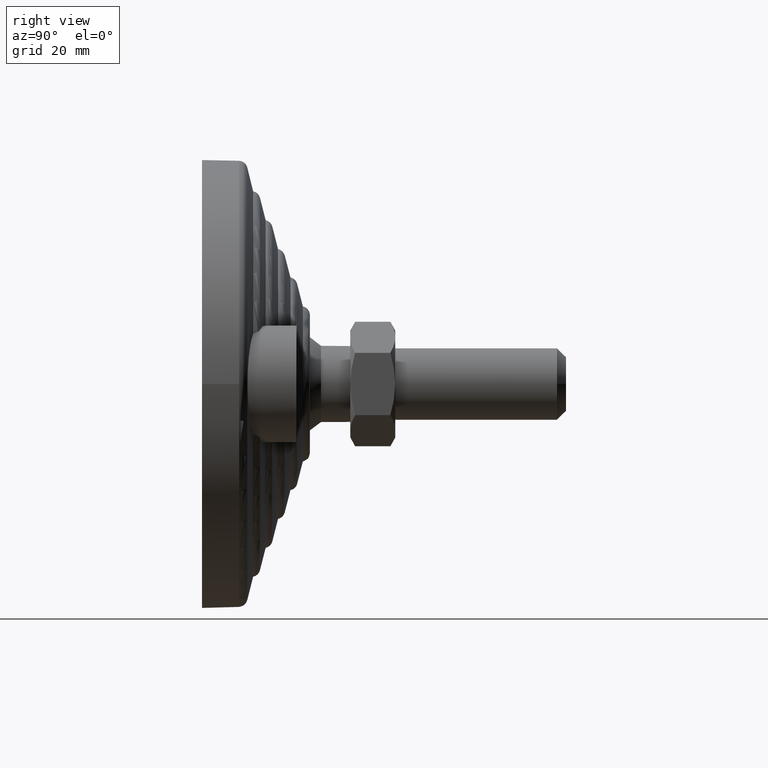
[diagram: clean part render]
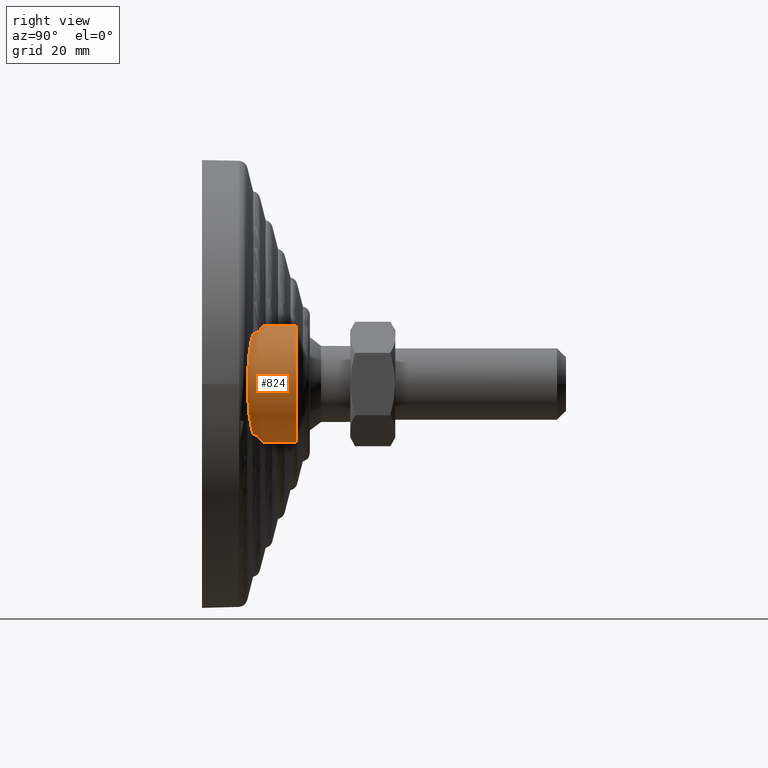
[diagram: same view with one face highlighted and labeled with its STEP entity id]
A machine part, right view. The second image highlights one B-rep face of the part: STEP entity #824.
In plain terms, the highlighted cylindrical surface (partial cylindrical patch) has radius 13 mm, axis along (0, -1, 0).
Its self-contained STEP definition (entity closure, byte-faithful):
#85=CYLINDRICAL_SURFACE('',#977,13.);
#88=B_SPLINE_CURVE_WITH_KNOTS('',3,(#1264,#1265,#1266,#1267,#1268,#1269,
#1270,#1271,#1272,#1273,#1274,#1275),.UNSPECIFIED.,.F.,.F.,(4,2,2,2,2,4),
(2.50076852648819,2.81060137692785,3.1204342273675,3.43026707780716,3.74009992824682,
3.82645813405755),.UNSPECIFIED.);
#91=B_SPLINE_CURVE_WITH_KNOTS('',3,(#1306,#1307,#1308,#1309,#1310,#1311,
#1312,#1313,#1314,#1315,#1316,#1317),.UNSPECIFIED.,.F.,.F.,(4,2,2,2,2,4),
(1.17507891891882,1.26143712472955,1.57126997516921,1.88110282560887,2.19093567604853,
2.50076852648819),.UNSPECIFIED.);
#104=B_SPLINE_CURVE_WITH_KNOTS('',3,(#1492,#1493,#1494,#1495,#1496,#1497,
#1498,#1499,#1500,#1501),.UNSPECIFIED.,.F.,.F.,(4,2,2,2,4),(-0.29478488646024,
-0.202968542157445,-0.118333422237156,-0.0551045092159439,-0.0424427112928952),
 .UNSPECIFIED.);
#106=B_SPLINE_CURVE_WITH_KNOTS('',3,(#1514,#1515,#1516,#1517,#1518,#1519,
#1520,#1521,#1522,#1523),.UNSPECIFIED.,.F.,.F.,(4,2,2,2,4),(-1.28290585889536,
-1.27614486245681,-1.22425418163122,-1.13521235336469,-1.03713357529167),
 .UNSPECIFIED.);
#110=B_SPLINE_CURVE_WITH_KNOTS('',3,(#1636,#1637,#1638,#1639,#1640,#1641,
#1642,#1643),.UNSPECIFIED.,.F.,.F.,(4,2,2,4),(0.496035183508374,0.630719046331009,
0.946078569496514,0.978975324352635),.UNSPECIFIED.);
#111=B_SPLINE_CURVE_WITH_KNOTS('',3,(#1644,#1645,#1646,#1647,#1648,#1649,
#1650,#1651),.UNSPECIFIED.,.F.,.F.,(4,2,2,4),(4.02256413327761,4.05546088813373,
4.37082041129924,4.50550427412187),.UNSPECIFIED.);
#143=FACE_OUTER_BOUND('',#191,.T.);
#191=EDGE_LOOP('',(#668,#669,#670,#671,#672,#673,#674,#675,#676));
#231=LINE('',#1596,#256);
#232=LINE('',#1603,#257);
#256=VECTOR('',#1142,7.0187379112308);
#257=VECTOR('',#1145,7.0187379112308);
#311=CIRCLE('',#975,13.);
#327=VERTEX_POINT('',#1261);
#328=VERTEX_POINT('',#1263);
#332=VERTEX_POINT('',#1304);
#364=VERTEX_POINT('',#1490);
#365=VERTEX_POINT('',#1513);
#379=VERTEX_POINT('',#1584);
#380=VERTEX_POINT('',#1594);
#381=VERTEX_POINT('',#1598);
#382=VERTEX_POINT('',#1602);
#417=EDGE_CURVE('',#327,#328,#88,.T.);
#422=EDGE_CURVE('',#332,#327,#91,.T.);
#457=EDGE_CURVE('',#364,#332,#104,.T.);
#459=EDGE_CURVE('',#328,#365,#106,.T.);
#482=EDGE_CURVE('',#379,#380,#231,.T.);
#484=EDGE_CURVE('',#381,#382,#232,.T.);
#492=EDGE_CURVE('',#380,#382,#311,.T.);
#497=EDGE_CURVE('',#379,#364,#110,.T.);
#498=EDGE_CURVE('',#365,#381,#111,.T.);
#668=ORIENTED_EDGE('',*,*,#497,.F.);
#669=ORIENTED_EDGE('',*,*,#482,.T.);
#670=ORIENTED_EDGE('',*,*,#492,.T.);
#671=ORIENTED_EDGE('',*,*,#484,.F.);
#672=ORIENTED_EDGE('',*,*,#498,.F.);
#673=ORIENTED_EDGE('',*,*,#459,.F.);
#674=ORIENTED_EDGE('',*,*,#417,.F.);
#675=ORIENTED_EDGE('',*,*,#422,.F.);
#676=ORIENTED_EDGE('',*,*,#457,.F.);
#824=ADVANCED_FACE('',(#143),#85,.T.);
#975=AXIS2_PLACEMENT_3D('',#1623,#1152,#1153);
#977=AXIS2_PLACEMENT_3D('',#1635,#1157,#1158);
#1142=DIRECTION('',(0.,1.,0.));
#1145=DIRECTION('',(0.,1.,0.));
#1152=DIRECTION('center_axis',(0.,-1.,0.));
#1153=DIRECTION('ref_axis',(0.,0.,1.));
#1157=DIRECTION('center_axis',(0.,-1.,0.));
#1158=DIRECTION('ref_axis',(0.,0.,1.));
#1261=CARTESIAN_POINT('',(48.,10.1209116194229,1.77332107331729E-15));
#1263=CARTESIAN_POINT('',(41.5637430040724,11.3805611585628,11.2212868146434));
#1264=CARTESIAN_POINT('Ctrl Pts',(48.,10.1209116194229,-2.56739074444567E-15));
#1265=CARTESIAN_POINT('Ctrl Pts',(48.,10.1209116194229,1.03277616813219));
#1266=CARTESIAN_POINT('Ctrl Pts',(47.8750723305159,10.1440297672103,2.08945378100524));
#1267=CARTESIAN_POINT('Ctrl Pts',(47.363613071339,10.2395226315442,4.15624547417785));
#1268=CARTESIAN_POINT('Ctrl Pts',(46.9772306714295,10.3118800012724,5.16639727235595));
#1269=CARTESIAN_POINT('Ctrl Pts',(45.9708852446813,10.5031685635462,7.05587648913133));
#1270=CARTESIAN_POINT('Ctrl Pts',(45.3497258188676,10.6223637430668,7.93742472407508));
#1271=CARTESIAN_POINT('Ctrl Pts',(43.9299405594507,10.9004885845797,9.50661335031415));
#1272=CARTESIAN_POINT('Ctrl Pts',(43.1312060660086,11.0595112082074,10.19413894535));
#1273=CARTESIAN_POINT('Ctrl Pts',(42.0529195175997,11.2796811233958,10.9241423895563));
#1274=CARTESIAN_POINT('Ctrl Pts',(41.8112975847212,11.3293276299164,11.0764830435876));
#1275=CARTESIAN_POINT('Ctrl Pts',(41.5637430040724,11.3805611585628,11.2212868146434));
#1304=CARTESIAN_POINT('',(41.5637430040724,11.3805611585628,-11.2212868146434));
#1306=CARTESIAN_POINT('Ctrl Pts',(41.5637430040724,11.3805611585628,-11.2212868146434));
#1307=CARTESIAN_POINT('Ctrl Pts',(41.8112975847212,11.3293276299164,-11.0764830435876));
#1308=CARTESIAN_POINT('Ctrl Pts',(42.0529195175997,11.2796811233958,-10.9241423895563));
#1309=CARTESIAN_POINT('Ctrl Pts',(43.1312060660086,11.0595112082074,-10.19413894535));
#1310=CARTESIAN_POINT('Ctrl Pts',(43.9299405594507,10.9004885845797,-9.50661335031416));
#1311=CARTESIAN_POINT('Ctrl Pts',(45.3497258188676,10.6223637430668,-7.93742472407508));
#1312=CARTESIAN_POINT('Ctrl Pts',(45.9708852446814,10.5031685635462,-7.05587648913134));
#1313=CARTESIAN_POINT('Ctrl Pts',(46.9772306714295,10.3118800012724,-5.16639727235595));
#1314=CARTESIAN_POINT('Ctrl Pts',(47.363613071339,10.2395226315442,-4.15624547417785));
#1315=CARTESIAN_POINT('Ctrl Pts',(47.8750723305159,10.1440297672103,-2.08945378100525));
#1316=CARTESIAN_POINT('Ctrl Pts',(48.,10.1209116194229,-1.0327761681322));
#1317=CARTESIAN_POINT('Ctrl Pts',(48.,10.1209116194229,-2.56739074444567E-15));
#1490=CARTESIAN_POINT('',(39.7939882109459,12.8988379473812,-12.0837774322979));
#1492=CARTESIAN_POINT('Ctrl Pts',(39.7939882109459,12.8988379473812,-12.0837774322979));
#1493=CARTESIAN_POINT('Ctrl Pts',(40.0878596814415,12.8365167188334,-11.9671900180574));
#1494=CARTESIAN_POINT('Ctrl Pts',(40.3686177088509,12.727224962283,-11.842958446444));
#1495=CARTESIAN_POINT('Ctrl Pts',(40.851730646261,12.435020003689,-11.6113430402505));
#1496=CARTESIAN_POINT('Ctrl Pts',(41.0623662736303,12.2559355373687,-11.5015048613454));
#1497=CARTESIAN_POINT('Ctrl Pts',(41.3569030137365,11.8799163654624,-11.340651578264));
#1498=CARTESIAN_POINT('Ctrl Pts',(41.4594817896175,11.6986424001609,-11.2818999079957));
#1499=CARTESIAN_POINT('Ctrl Pts',(41.5410182513413,11.4610123735766,-11.2345595232826));
#1500=CARTESIAN_POINT('Ctrl Pts',(41.553139633272,11.4209631638245,-11.2274891158643));
#1501=CARTESIAN_POINT('Ctrl Pts',(41.5637430040724,11.3805611585628,-11.2212868146434));
#1513=CARTESIAN_POINT('',(39.7939882109459,12.8988379473812,12.0837774322979));
#1514=CARTESIAN_POINT('Ctrl Pts',(41.5637430040724,11.3805611585628,11.2212868146434));
#1515=CARTESIAN_POINT('Ctrl Pts',(41.558106170536,11.4020391755522,11.2245840057144));
#1516=CARTESIAN_POINT('Ctrl Pts',(41.5520422712855,11.4234100599841,11.2281253291335));
#1517=CARTESIAN_POINT('Ctrl Pts',(41.4957876696653,11.6078099384282,11.2609085262427));
#1518=CARTESIAN_POINT('Ctrl Pts',(41.4228733144833,11.7590461188357,11.302969528365));
#1519=CARTESIAN_POINT('Ctrl Pts',(41.180743871261,12.1329970120178,11.4380545484463));
#1520=CARTESIAN_POINT('Ctrl Pts',(40.9733132016068,12.339794855228,11.5496819347448));
#1521=CARTESIAN_POINT('Ctrl Pts',(40.4544969886526,12.6912286268284,11.8042456409194));
#1522=CARTESIAN_POINT('Ctrl Pts',(40.1361853725708,12.8262683050063,11.9480178018479));
#1523=CARTESIAN_POINT('Ctrl Pts',(39.7939882109459,12.8988379473812,12.0837774322979));
#1584=CARTESIAN_POINT('',(35.,13.9812620887692,-13.));
#1594=CARTESIAN_POINT('',(35.,21.,-13.));
#1596=CARTESIAN_POINT('',(35.,13.9812620887692,-13.));
#1598=CARTESIAN_POINT('',(35.,13.9812620887692,13.));
#1602=CARTESIAN_POINT('',(35.,21.,13.));
#1603=CARTESIAN_POINT('',(35.,13.9812620887692,13.));
#1623=CARTESIAN_POINT('Origin',(35.,21.,0.));
#1635=CARTESIAN_POINT('Origin',(35.,1.,0.));
#1636=CARTESIAN_POINT('Ctrl Pts',(35.,13.9812620887692,-13.));
#1637=CARTESIAN_POINT('Ctrl Pts',(35.4556435306088,13.8725253564977,-13.));
#1638=CARTESIAN_POINT('Ctrl Pts',(35.9122835837928,13.7654229894468,-12.9759927592604));
#1639=CARTESIAN_POINT('Ctrl Pts',(37.4301435560572,13.4150174507364,-12.8155494008206));
#1640=CARTESIAN_POINT('Ctrl Pts',(38.4829316239188,13.1812992462495,-12.5699606465207));
#1641=CARTESIAN_POINT('Ctrl Pts',(39.5871327595157,12.943225011916,-12.1643150522899));
#1642=CARTESIAN_POINT('Ctrl Pts',(39.6908674155101,12.9209311403923,-12.1246884702901));
#1643=CARTESIAN_POINT('Ctrl Pts',(39.7939882109459,12.8988379473811,-12.0837774322979));
#1644=CARTESIAN_POINT('Ctrl Pts',(39.7939882109459,12.8988379473811,12.0837774322979));
#1645=CARTESIAN_POINT('Ctrl Pts',(39.6908674155101,12.9209311403923,12.1246884702901));
#1646=CARTESIAN_POINT('Ctrl Pts',(39.5871327595157,12.943225011916,12.1643150522899));
#1647=CARTESIAN_POINT('Ctrl Pts',(38.4829316239188,13.1812992462495,12.5699606465207));
#1648=CARTESIAN_POINT('Ctrl Pts',(37.4301435560572,13.4150174507365,12.8155494008206));
#1649=CARTESIAN_POINT('Ctrl Pts',(35.9122835837928,13.7654229894468,12.9759927592604));
#1650=CARTESIAN_POINT('Ctrl Pts',(35.4556435306088,13.8725253564977,13.));
#1651=CARTESIAN_POINT('Ctrl Pts',(35.,13.9812620887692,13.));